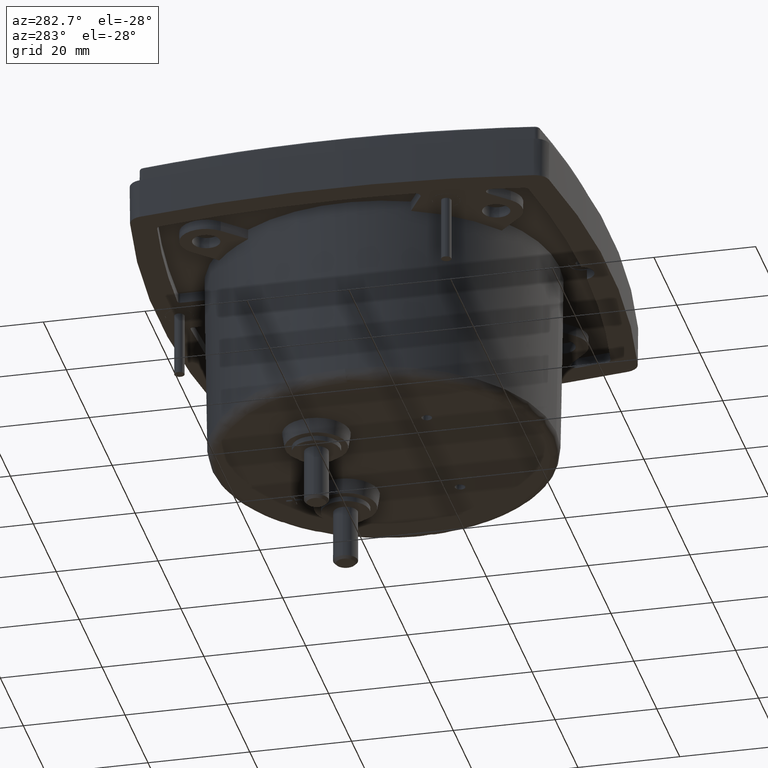
[diagram: clean part render]
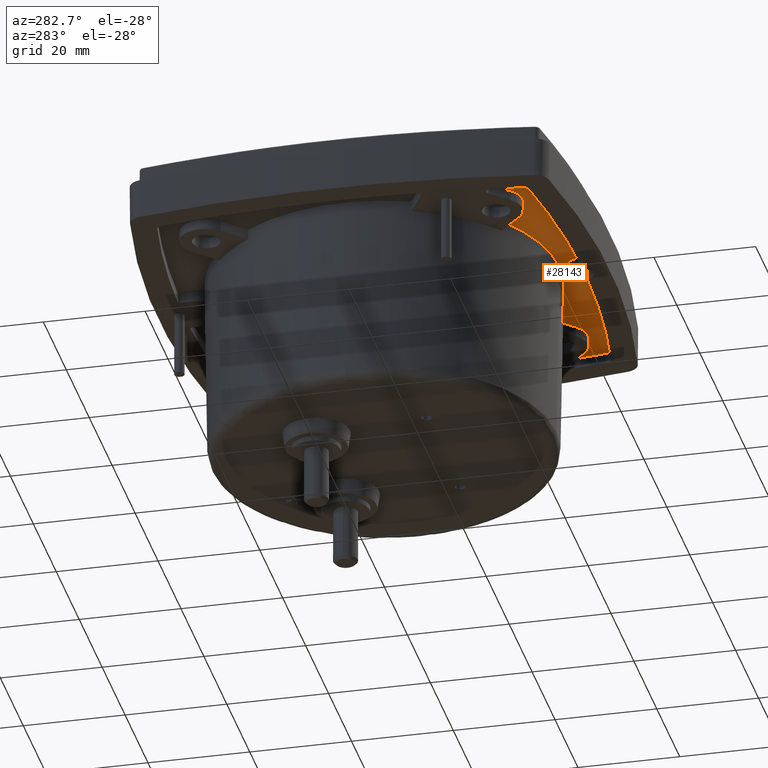
[diagram: same view with one face highlighted and labeled with its STEP entity id]
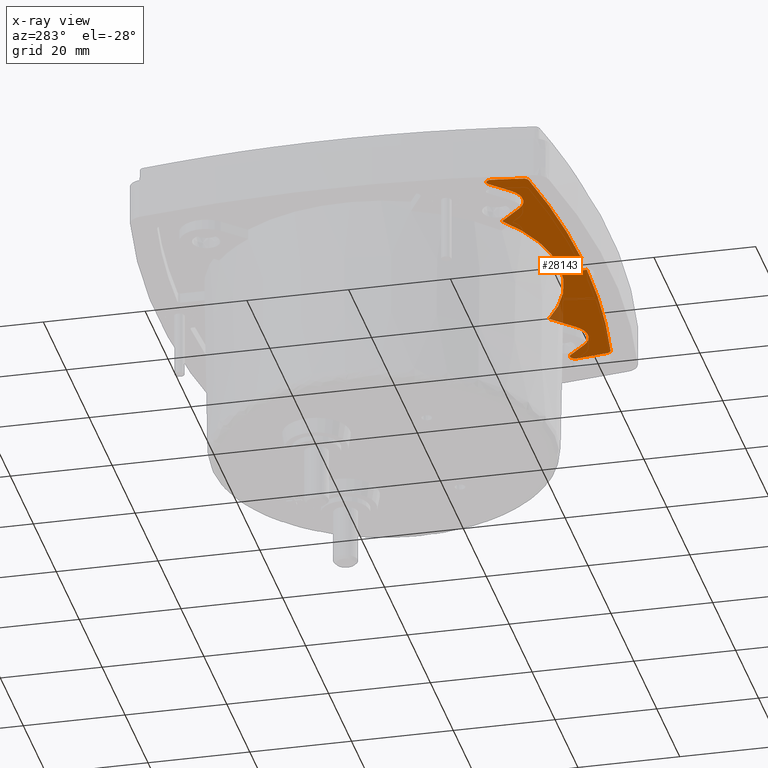
[diagram: x-ray of the same camera — body ghosted, the highlighted face saturated]
A machine part, auxiliary view. The second image highlights one B-rep face of the part: STEP entity #28143.
The next image is the same camera in x-ray: the body ghosted, the highlighted face saturated — about 2% of this face is hidden behind the body in this view.
In plain terms, the highlighted planar face has unit normal (0, 0, -1).
Its self-contained STEP definition (entity closure, byte-faithful):
#44 = EDGE_CURVE ( 'NONE', #27981, #29692, #9611, .T. ) ;
#65 = DIRECTION ( 'NONE',  ( -1.000000000000000000, 0.000000000000000000, 0.000000000000000000 ) ) ;
#149 = EDGE_CURVE ( 'NONE', #2854, #27440, #12542, .T. ) ;
#815 = DIRECTION ( 'NONE',  ( -0.000000000000000000, -0.000000000000000000, 1.000000000000000000 ) ) ;
#979 = ORIENTED_EDGE ( 'NONE', *, *, #149, .T. ) ;
#1216 = DIRECTION ( 'NONE',  ( 0.7071067811865390240, -0.7071067811865560104, 0.000000000000000000 ) ) ;
#1351 = AXIS2_PLACEMENT_3D ( 'NONE', #10727, #22506, #13136 ) ;
#1757 = PLANE ( 'NONE',  #10382 ) ;
#2002 = CARTESIAN_POINT ( 'NONE',  ( -1.398284467349039550, -0.7839774483647126146, -0.1299212598434757726 ) ) ;
#2069 = VERTEX_POINT ( 'NONE', #3409 ) ;
#2460 = DIRECTION ( 'NONE',  ( 0.000000000000000000, 0.000000000000000000, -1.000000000000000000 ) ) ;
#2633 = AXIS2_PLACEMENT_3D ( 'NONE', #19291, #4961, #2700 ) ;
#2700 = DIRECTION ( 'NONE',  ( -1.000000000000000000, 0.000000000000000000, 0.000000000000000000 ) ) ;
#2854 = VERTEX_POINT ( 'NONE', #7996 ) ;
#3041 = CARTESIAN_POINT ( 'NONE',  ( 0.8045639062677363285, -0.4798685304199448720, -0.1299212598425196763 ) ) ;
#3074 = DIRECTION ( 'NONE',  ( 0.000000000000000000, 1.000000000000000000, 0.000000000000000000 ) ) ;
#3077 = EDGE_CURVE ( 'NONE', #28180, #27981, #13222, .T. ) ;
#3172 = VERTEX_POINT ( 'NONE', #21409 ) ;
#3273 = CARTESIAN_POINT ( 'NONE',  ( -0.06375142763386142108, 0.2610315549591267770, -0.1299212598425196763 ) ) ;
#3409 = CARTESIAN_POINT ( 'NONE',  ( 0.09845010897215590584, -0.9132958395063779378, -0.1299212598434757726 ) ) ;
#3634 = DIRECTION ( 'NONE',  ( 0.000000000000000000, 0.000000000000000000, -1.000000000000000000 ) ) ;
#3759 = DIRECTION ( 'NONE',  ( 1.000000000000000000, 0.000000000000000000, 0.000000000000000000 ) ) ;
#3867 = ORIENTED_EDGE ( 'NONE', *, *, #25500, .T. ) ;
#4064 = VERTEX_POINT ( 'NONE', #27611 ) ;
#4073 = DIRECTION ( 'NONE',  ( 1.000000000000000000, 0.000000000000000000, 0.000000000000000000 ) ) ;
#4577 = CARTESIAN_POINT ( 'NONE',  ( -1.433822021997236185, -0.5412547896499764200, -0.1299212598434757726 ) ) ;
#4725 = CARTESIAN_POINT ( 'NONE',  ( -4.380337259892101671E-05, -0.9132958395063779378, -0.1299212598434757726 ) ) ;
#4761 = CARTESIAN_POINT ( 'NONE',  ( -1.472852376302118405, -0.5464156561317181637, -0.1299212598429883847 ) ) ;
#4915 = AXIS2_PLACEMENT_3D ( 'NONE', #23909, #815, #28435 ) ;
#4961 = DIRECTION ( 'NONE',  ( 0.000000000000000000, 0.000000000000000000, -1.000000000000000000 ) ) ;
#5229 = ORIENTED_EDGE ( 'NONE', *, *, #25553, .T. ) ;
#5428 = VERTEX_POINT ( 'NONE', #17172 ) ;
#5463 = CARTESIAN_POINT ( 'NONE',  ( -1.404529401087210694, -0.8228490820146141527, -0.1299212598429793364 ) ) ;
#5479 = CARTESIAN_POINT ( 'NONE',  ( -4.380337259880149020E-05, 0.6142632156117322495, -0.1299212598425228404 ) ) ;
#5527 = LINE ( 'NONE', #3273, #29670 ) ;
#5836 = CARTESIAN_POINT ( 'NONE',  ( -4.380337259896781359E-05, -0.7438670594677303516, -0.1299212598425228404 ) ) ;
#6270 = FACE_OUTER_BOUND ( 'NONE', #26025, .T. ) ;
#6324 = CARTESIAN_POINT ( 'NONE',  ( 1.266765458917558984, -0.6525460466784290814, -0.1299212598425196763 ) ) ;
#6358 = CIRCLE ( 'NONE', #4915, 0.09849391234475471379 ) ;
#6379 = CARTESIAN_POINT ( 'NONE',  ( 0.9772414225262243681, -0.6525460466784231972, -0.1299212598429976551 ) ) ;
#6445 = AXIS2_PLACEMENT_3D ( 'NONE', #4577, #2460, #13790 ) ;
#6549 = ORIENTED_EDGE ( 'NONE', *, *, #24977, .T. ) ;
#6581 = CARTESIAN_POINT ( 'NONE',  ( -7.305161913608819724, 0.6142632156117322495, -0.1299212598425196763 ) ) ;
#6608 = ORIENTED_EDGE ( 'NONE', *, *, #26129, .T. ) ;
#6817 = VERTEX_POINT ( 'NONE', #11584 ) ;
#6900 = AXIS2_PLACEMENT_3D ( 'NONE', #5479, #14689, #3074 ) ;
#7003 = AXIS2_PLACEMENT_3D ( 'NONE', #10805, #21692, #24549 ) ;
#7004 = ORIENTED_EDGE ( 'NONE', *, *, #18384, .T. ) ;
#7015 = DIRECTION ( 'NONE',  ( 0.000000000000000000, -1.000000000000000000, -1.928327563335712718E-18 ) ) ;
#7069 = AXIS2_PLACEMENT_3D ( 'NONE', #23039, #29822, #65 ) ;
#7255 = CARTESIAN_POINT ( 'NONE',  ( -1.266853065662756128, -0.6525460466784250846, -0.1299212598429976551 ) ) ;
#7273 = DIRECTION ( 'NONE',  ( 0.000000000000000000, 0.000000000000000000, -1.000000000000000000 ) ) ;
#7870 = ORIENTED_EDGE ( 'NONE', *, *, #3077, .T. ) ;
#7996 = CARTESIAN_POINT ( 'NONE',  ( -1.405983172344216436, -0.5134159399969425719, -0.1299212598432368249 ) ) ;
#8381 = VERTEX_POINT ( 'NONE', #4761 ) ;
#8492 = CIRCLE ( 'NONE', #7069, 8.854330708661416693 ) ;
#8648 = DIRECTION ( 'NONE',  ( -1.000000000000000000, 0.000000000000000000, 0.000000000000000000 ) ) ;
#9611 = CIRCLE ( 'NONE', #12485, 8.854330708661418470 ) ;
#9745 = CIRCLE ( 'NONE', #15022, 8.854330708661416693 ) ;
#9877 = VERTEX_POINT ( 'NONE', #6379 ) ;
#10072 = ORIENTED_EDGE ( 'NONE', *, *, #22874, .T. ) ;
#10363 = CIRCLE ( 'NONE', #7003, 1.358130275079462601 ) ;
#10382 = AXIS2_PLACEMENT_3D ( 'NONE', #6581, #20177, #15795 ) ;
#10727 = CARTESIAN_POINT ( 'NONE',  ( -4.380337259892101671E-05, -0.9132958395063779378, -0.1299212598434757726 ) ) ;
#10805 = CARTESIAN_POINT ( 'NONE',  ( -4.380337259880149020E-05, 0.6142632156117322495, -0.1299212598425228404 ) ) ;
#10898 = AXIS2_PLACEMENT_3D ( 'NONE', #13418, #17645, #3759 ) ;
#11169 = VERTEX_POINT ( 'NONE', #5836 ) ;
#11174 = DIRECTION ( 'NONE',  ( 0.000000000000000000, 0.000000000000000000, 1.000000000000000000 ) ) ;
#11242 = DIRECTION ( 'NONE',  ( 0.000000000000000000, 1.928177923906634842E-18, -1.000000000000000000 ) ) ;
#11425 = VERTEX_POINT ( 'NONE', #13049 ) ;
#11584 = CARTESIAN_POINT ( 'NONE',  ( -0.09624429519834271085, -0.9344267680581438418, -0.1299212598430684873 ) ) ;
#11663 = DIRECTION ( 'NONE',  ( -1.000000000000000000, 0.000000000000000000, 0.000000000000000000 ) ) ;
#12257 = DIRECTION ( 'NONE',  ( -0.000000000000000000, -0.000000000000000000, 1.000000000000000000 ) ) ;
#12485 = AXIS2_PLACEMENT_3D ( 'NONE', #15405, #3634, #24472 ) ;
#12542 = LINE ( 'NONE', #21753, #23809 ) ;
#12615 = CARTESIAN_POINT ( 'NONE',  ( -4.380337260016740197E-05, 7.919381325847953512, -0.1299212598424785425 ) ) ;
#12683 = EDGE_CURVE ( 'NONE', #24163, #26909, #9745, .T. ) ;
#12812 = DIRECTION ( 'NONE',  ( 0.000000000000000000, 0.000000000000000000, -1.000000000000000000 ) ) ;
#12866 = EDGE_CURVE ( 'NONE', #26909, #2069, #6358, .T. ) ;
#13049 = CARTESIAN_POINT ( 'NONE',  ( -0.9773290292714174043, -0.6525460466784271940, -0.1299212598429976551 ) ) ;
#13136 = DIRECTION ( 'NONE',  ( -1.000000000000000000, 0.000000000000000000, 0.000000000000000000 ) ) ;
#13187 = VERTEX_POINT ( 'NONE', #23286 ) ;
#13222 = CIRCLE ( 'NONE', #2633, 0.03937007874017855319 ) ;
#13418 = CARTESIAN_POINT ( 'NONE',  ( 1.122003440721889955, -0.5077840284827559447, -0.1299212598434757726 ) ) ;
#13721 = CIRCLE ( 'NONE', #29623, 0.03937007874016079656 ) ;
#13790 = DIRECTION ( 'NONE',  ( -1.000000000000000000, 0.000000000000000000, 0.000000000000000000 ) ) ;
#13824 = AXIS2_PLACEMENT_3D ( 'NONE', #18764, #7273, #25859 ) ;
#13994 = ORIENTED_EDGE ( 'NONE', *, *, #14846, .T. ) ;
#14052 = EDGE_CURVE ( 'NONE', #3172, #11169, #17485, .T. ) ;
#14689 = DIRECTION ( 'NONE',  ( -0.000000000000000000, -6.285866044552559974E-18, -1.000000000000000000 ) ) ;
#14846 = EDGE_CURVE ( 'NONE', #8381, #5428, #26625, .T. ) ;
#15022 = AXIS2_PLACEMENT_3D ( 'NONE', #24095, #11242, #7015 ) ;
#15035 = CARTESIAN_POINT ( 'NONE',  ( 1.472764769556911491, -0.5464156561317172756, -0.1299212598429883847 ) ) ;
#15405 = CARTESIAN_POINT ( 'NONE',  ( -7.305161913608819724, 0.6142632156117322495, -0.1299212598424966669 ) ) ;
#15795 = DIRECTION ( 'NONE',  ( -1.000000000000000000, 0.000000000000000000, 0.000000000000000000 ) ) ;
#15968 = EDGE_CURVE ( 'NONE', #9877, #4064, #28720, .T. ) ;
#16616 = AXIS2_PLACEMENT_3D ( 'NONE', #4725, #12257, #11663 ) ;
#17084 = VECTOR ( 'NONE', #20375, 39.37007874015748143 ) ;
#17172 = CARTESIAN_POINT ( 'NONE',  ( -1.473192100737410248, -0.5412547896499764200, -0.1299212598434757726 ) ) ;
#17300 = DIRECTION ( 'NONE',  ( 0.000000000000000000, 1.928177923906634842E-18, -1.000000000000000000 ) ) ;
#17440 = DIRECTION ( 'NONE',  ( 0.000000000000000000, -1.000000000000000000, -1.928327563335712718E-18 ) ) ;
#17485 = CIRCLE ( 'NONE', #6900, 1.358130275079462601 ) ;
#17645 = DIRECTION ( 'NONE',  ( 0.000000000000000000, 0.000000000000000000, 1.000000000000000000 ) ) ;
#17954 = LINE ( 'NONE', #6324, #17084 ) ;
#18077 = VERTEX_POINT ( 'NONE', #5463 ) ;
#18255 = CIRCLE ( 'NONE', #25980, 8.854330708661416693 ) ;
#18384 = EDGE_CURVE ( 'NONE', #27492, #6817, #20663, .T. ) ;
#18764 = CARTESIAN_POINT ( 'NONE',  ( 1.398196860603842406, -0.7839774483647126146, -0.1299212598434757726 ) ) ;
#19029 = CIRCLE ( 'NONE', #16616, 0.09849391234475471379 ) ;
#19135 = EDGE_CURVE ( 'NONE', #6817, #18077, #18255, .T. ) ;
#19291 = CARTESIAN_POINT ( 'NONE',  ( 1.433734415252039263, -0.5412547896499764200, -0.1299212598434757726 ) ) ;
#19471 = CIRCLE ( 'NONE', #6445, 0.03937007874017418169 ) ;
#19749 = EDGE_CURVE ( 'NONE', #18077, #20427, #13721, .T. ) ;
#19880 = AXIS2_PLACEMENT_3D ( 'NONE', #22176, #12812, #22477 ) ;
#20134 = DIRECTION ( 'NONE',  ( 0.000000000000000000, 0.000000000000000000, -1.000000000000000000 ) ) ;
#20177 = DIRECTION ( 'NONE',  ( 0.000000000000000000, 0.000000000000000000, -1.000000000000000000 ) ) ;
#20364 = EDGE_CURVE ( 'NONE', #11169, #13187, #10363, .T. ) ;
#20375 = DIRECTION ( 'NONE',  ( 0.7071067811865390240, 0.7071067811865560104, 0.000000000000000000 ) ) ;
#20427 = VERTEX_POINT ( 'NONE', #21840 ) ;
#20455 = ORIENTED_EDGE ( 'NONE', *, *, #19135, .T. ) ;
#20663 = CIRCLE ( 'NONE', #1351, 0.09849391234475471379 ) ;
#20739 = CARTESIAN_POINT ( 'NONE',  ( 0.09615668845314863378, -0.9344267680581438418, -0.1299212598430698751 ) ) ;
#20973 = ORIENTED_EDGE ( 'NONE', *, *, #28645, .T. ) ;
#21409 = CARTESIAN_POINT ( 'NONE',  ( 0.8045639062677913955, -0.4798685304200008273, -0.1299212598425212584 ) ) ;
#21692 = DIRECTION ( 'NONE',  ( -0.000000000000000000, -6.285866044552559974E-18, -1.000000000000000000 ) ) ;
#21753 = CARTESIAN_POINT ( 'NONE',  ( -1.405983172344224430, -0.5134159399969606685, -0.1299212598425196763 ) ) ;
#21821 = ORIENTED_EDGE ( 'NONE', *, *, #19749, .T. ) ;
#21840 = CARTESIAN_POINT ( 'NONE',  ( -1.437156100998942865, -0.7902223821028819817, -0.1299212598429883847 ) ) ;
#21930 = AXIS2_PLACEMENT_3D ( 'NONE', #24762, #11174, #4073 ) ;
#22022 = VECTOR ( 'NONE', #26003, 39.37007874015748143 ) ;
#22176 = CARTESIAN_POINT ( 'NONE',  ( -1.433822021997236185, -0.5412547896499764200, -0.1299212598434757726 ) ) ;
#22477 = DIRECTION ( 'NONE',  ( -1.000000000000000000, 0.000000000000000000, 0.000000000000000000 ) ) ;
#22506 = DIRECTION ( 'NONE',  ( -0.000000000000000000, -0.000000000000000000, 1.000000000000000000 ) ) ;
#22874 = EDGE_CURVE ( 'NONE', #4064, #28180, #17954, .T. ) ;
#23039 = CARTESIAN_POINT ( 'NONE',  ( 7.305074306863622802, 0.6142632156117322495, -0.1299212598424966669 ) ) ;
#23264 = CARTESIAN_POINT ( 'NONE',  ( -0.09853771571735374379, -0.9132958395063779378, -0.1299212598434757726 ) ) ;
#23286 = CARTESIAN_POINT ( 'NONE',  ( -0.8046515130130335036, -0.4798685304200637769, -0.1299212598425226461 ) ) ;
#23809 = VECTOR ( 'NONE', #1216, 39.37007874015748143 ) ;
#23909 = CARTESIAN_POINT ( 'NONE',  ( -4.380337259892101671E-05, -0.9132958395063779378, -0.1299212598434757726 ) ) ;
#23939 = ORIENTED_EDGE ( 'NONE', *, *, #26744, .F. ) ;
#24095 = CARTESIAN_POINT ( 'NONE',  ( -4.380337260016740197E-05, 7.919381325847953512, -0.1299212598424966669 ) ) ;
#24163 = VERTEX_POINT ( 'NONE', #25659 ) ;
#24472 = DIRECTION ( 'NONE',  ( -1.000000000000000000, 0.000000000000000000, 0.000000000000000000 ) ) ;
#24545 = ORIENTED_EDGE ( 'NONE', *, *, #20364, .F. ) ;
#24549 = DIRECTION ( 'NONE',  ( 0.000000000000000000, 1.000000000000000000, 0.000000000000000000 ) ) ;
#24762 = CARTESIAN_POINT ( 'NONE',  ( -1.122091047467086655, -0.5077840284827559447, -0.1299212598434757726 ) ) ;
#24977 = EDGE_CURVE ( 'NONE', #20427, #8381, #8492, .T. ) ;
#25178 = ORIENTED_EDGE ( 'NONE', *, *, #15968, .T. ) ;
#25306 = CARTESIAN_POINT ( 'NONE',  ( 1.405895565599021735, -0.5134159399969591142, -0.1299212598429976551 ) ) ;
#25500 = EDGE_CURVE ( 'NONE', #3172, #9877, #28410, .T. ) ;
#25553 = EDGE_CURVE ( 'NONE', #29692, #24163, #26848, .T. ) ;
#25659 = CARTESIAN_POINT ( 'NONE',  ( 1.404441794342013772, -0.8228490820146102669, -0.1299212598429883847 ) ) ;
#25841 = EDGE_CURVE ( 'NONE', #2069, #27492, #19029, .T. ) ;
#25859 = DIRECTION ( 'NONE',  ( -1.000000000000000000, 0.000000000000000000, 0.000000000000000000 ) ) ;
#25980 = AXIS2_PLACEMENT_3D ( 'NONE', #12615, #17300, #17440 ) ;
#26003 = DIRECTION ( 'NONE',  ( 0.7071067811865560104, -0.7071067811865390240, 0.000000000000000000 ) ) ;
#26025 = EDGE_LOOP ( 'NONE', ( #5229, #26793, #28603, #26899, #7004, #20455, #21821, #6549, #13994, #20973, #979, #6608, #23939, #24545, #29365, #3867, #25178, #10072, #7870, #26499 ) ) ;
#26129 = EDGE_CURVE ( 'NONE', #27440, #11425, #27232, .T. ) ;
#26499 = ORIENTED_EDGE ( 'NONE', *, *, #44, .T. ) ;
#26516 = DIRECTION ( 'NONE',  ( -0.7071067811865460184, -0.7071067811865490160, 0.000000000000000000 ) ) ;
#26625 = CIRCLE ( 'NONE', #19880, 0.03937007874017418169 ) ;
#26744 = EDGE_CURVE ( 'NONE', #13187, #11425, #5527, .T. ) ;
#26793 = ORIENTED_EDGE ( 'NONE', *, *, #12683, .T. ) ;
#26848 = CIRCLE ( 'NONE', #13824, 0.03937007874015751446 ) ;
#26899 = ORIENTED_EDGE ( 'NONE', *, *, #25841, .T. ) ;
#26909 = VERTEX_POINT ( 'NONE', #20739 ) ;
#27232 = CIRCLE ( 'NONE', #21930, 0.2047244094488075705 ) ;
#27440 = VERTEX_POINT ( 'NONE', #7255 ) ;
#27492 = VERTEX_POINT ( 'NONE', #23264 ) ;
#27611 = CARTESIAN_POINT ( 'NONE',  ( 1.266765458917551213, -0.6525460466784193114, -0.1299212598437962662 ) ) ;
#27981 = VERTEX_POINT ( 'NONE', #15035 ) ;
#28143 = ADVANCED_FACE ( 'NONE', ( #6270 ), #1757, .T. ) ;
#28180 = VERTEX_POINT ( 'NONE', #25306 ) ;
#28410 = LINE ( 'NONE', #3041, #22022 ) ;
#28435 = DIRECTION ( 'NONE',  ( -1.000000000000000000, 6.934052898878850574E-15, 0.000000000000000000 ) ) ;
#28603 = ORIENTED_EDGE ( 'NONE', *, *, #12866, .T. ) ;
#28645 = EDGE_CURVE ( 'NONE', #5428, #2854, #19471, .T. ) ;
#28720 = CIRCLE ( 'NONE', #10898, 0.2047244094487925270 ) ;
#29178 = CARTESIAN_POINT ( 'NONE',  ( 1.437068494253744388, -0.7902223821028799833, -0.1299212598429883847 ) ) ;
#29365 = ORIENTED_EDGE ( 'NONE', *, *, #14052, .F. ) ;
#29623 = AXIS2_PLACEMENT_3D ( 'NONE', #2002, #20134, #8648 ) ;
#29670 = VECTOR ( 'NONE', #26516, 39.37007874015748143 ) ;
#29692 = VERTEX_POINT ( 'NONE', #29178 ) ;
#29822 = DIRECTION ( 'NONE',  ( 0.000000000000000000, 0.000000000000000000, -1.000000000000000000 ) ) ;